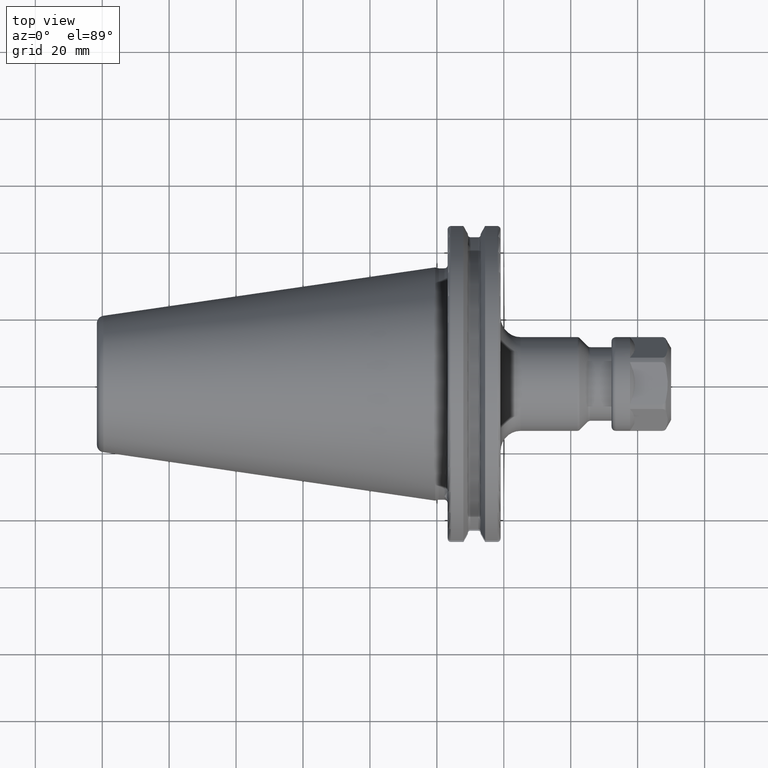
[diagram: clean part render]
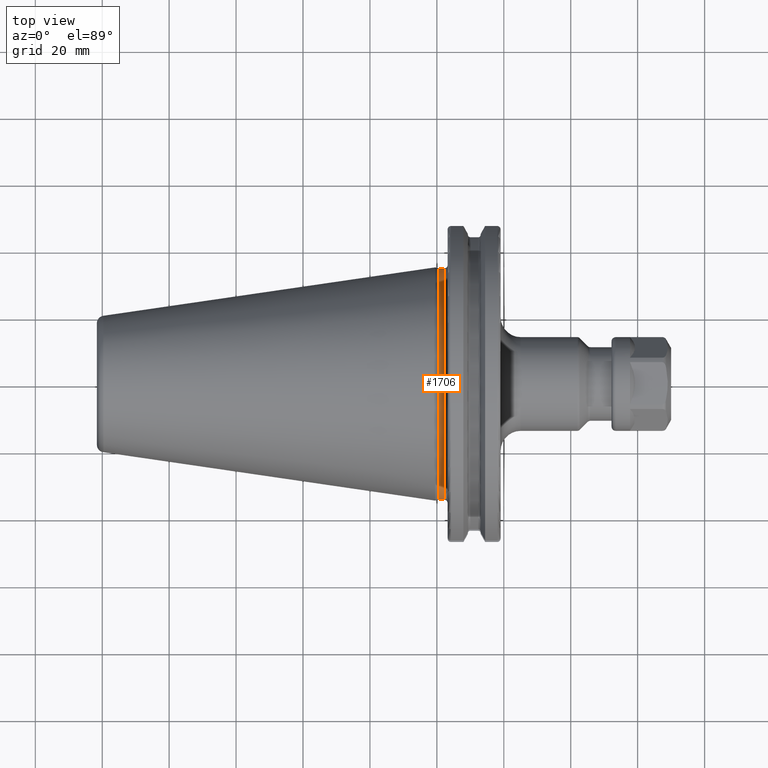
[diagram: same view with one face highlighted and labeled with its STEP entity id]
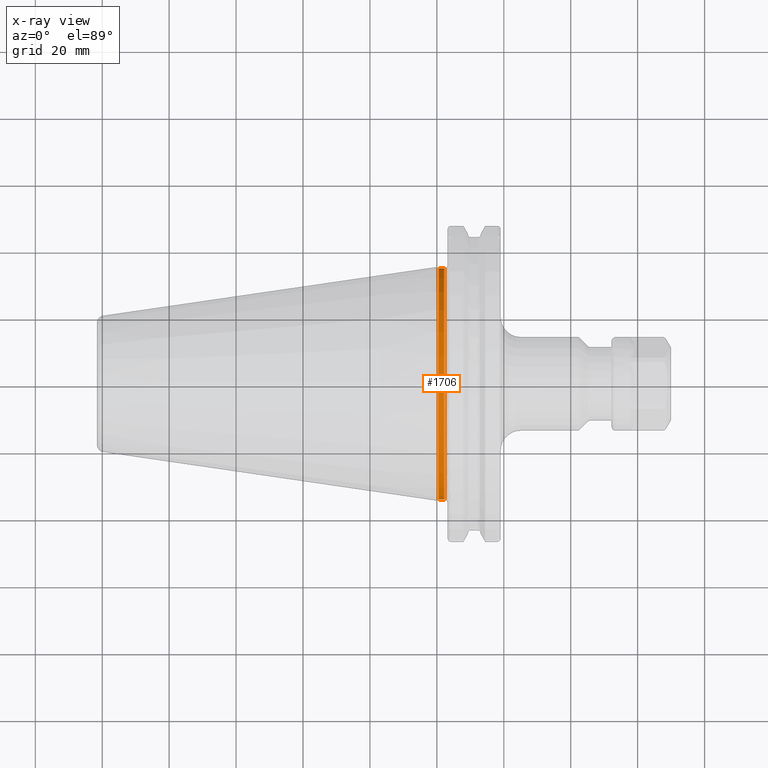
[diagram: x-ray of the same camera — body ghosted, the highlighted face saturated]
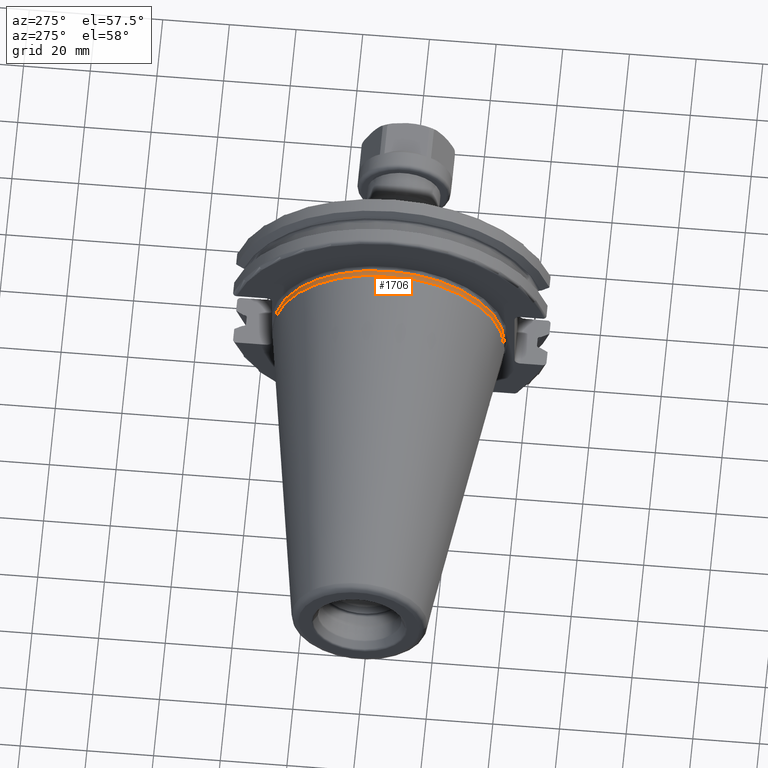
[diagram: same view with one face highlighted and labeled with its STEP entity id]
A machine part, top view. The second image highlights one B-rep face of the part: STEP entity #1706.
The next image is the same camera in x-ray: the body ghosted, the highlighted face saturated — about 0% of this face is hidden behind the body in this view.
A second angle (auxiliary view) of the same face is appended — the face is thin or edge-on in the first view.
In plain terms, the highlighted cylindrical surface (partial cylindrical patch) has radius 34.575 mm, axis along (1, 0, 0).
Its self-contained STEP definition (entity closure, byte-faithful):
#73=CARTESIAN_POINT('',(5.500000000001E-1,0.E0,0.E0));
#74=DIRECTION('',(1.E0,0.E0,0.E0));
#75=DIRECTION('',(0.E0,1.E0,0.E0));
#76=AXIS2_PLACEMENT_3D('',#73,#74,#75);
#78=CARTESIAN_POINT('',(2.2E0,0.E0,0.E0));
#79=DIRECTION('',(1.E0,0.E0,0.E0));
#80=DIRECTION('',(0.E0,1.E0,0.E0));
#81=AXIS2_PLACEMENT_3D('',#78,#79,#80);
#83=DIRECTION('',(-1.E0,0.E0,0.E0));
#84=VECTOR('',#83,1.65E0);
#85=CARTESIAN_POINT('',(2.2E0,3.4575E1,0.E0));
#86=LINE('',#85,#84);
#87=DIRECTION('',(-1.E0,0.E0,0.E0));
#88=VECTOR('',#87,1.65E0);
#89=CARTESIAN_POINT('',(2.2E0,-3.4575E1,0.E0));
#90=LINE('',#89,#88);
#1326=CARTESIAN_POINT('',(2.2E0,3.4575E1,0.E0));
#1327=CARTESIAN_POINT('',(5.5E-1,3.4575E1,0.E0));
#1328=VERTEX_POINT('',#1326);
#1329=VERTEX_POINT('',#1327);
#1331=CARTESIAN_POINT('',(2.2E0,-3.4575E1,0.E0));
#1333=VERTEX_POINT('',#1331);
#1334=CARTESIAN_POINT('',(5.5E-1,-3.4575E1,0.E0));
#1335=VERTEX_POINT('',#1334);
#1692=CARTESIAN_POINT('',(-1.076325E2,0.E0,0.E0));
#1693=DIRECTION('',(1.E0,0.E0,0.E0));
#1694=DIRECTION('',(0.E0,-1.E0,0.E0));
#1695=AXIS2_PLACEMENT_3D('',#1692,#1693,#1694);
#1696=CYLINDRICAL_SURFACE('',#1695,3.4575E1);
#1698=ORIENTED_EDGE('',*,*,#1697,.F.);
#1700=ORIENTED_EDGE('',*,*,#1699,.T.);
#1702=ORIENTED_EDGE('',*,*,#1701,.T.);
#1703=ORIENTED_EDGE('',*,*,#1685,.F.);
#1704=EDGE_LOOP('',(#1698,#1700,#1702,#1703));
#1705=FACE_OUTER_BOUND('',#1704,.F.);
#1706=ADVANCED_FACE('',(#1705),#1696,.T.);
#77=CIRCLE('',#76,3.4575E1);
#82=CIRCLE('',#81,3.4575E1);
#1685=EDGE_CURVE('',#1329,#1335,#77,.T.);
#1697=EDGE_CURVE('',#1328,#1329,#86,.T.);
#1699=EDGE_CURVE('',#1328,#1333,#82,.T.);
#1701=EDGE_CURVE('',#1333,#1335,#90,.T.);